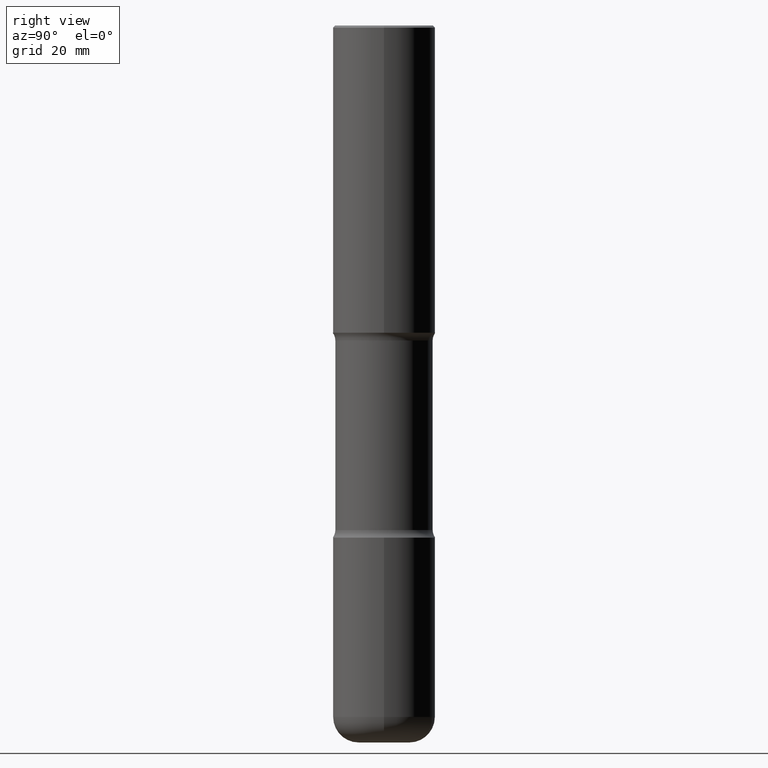
[diagram: clean part render]
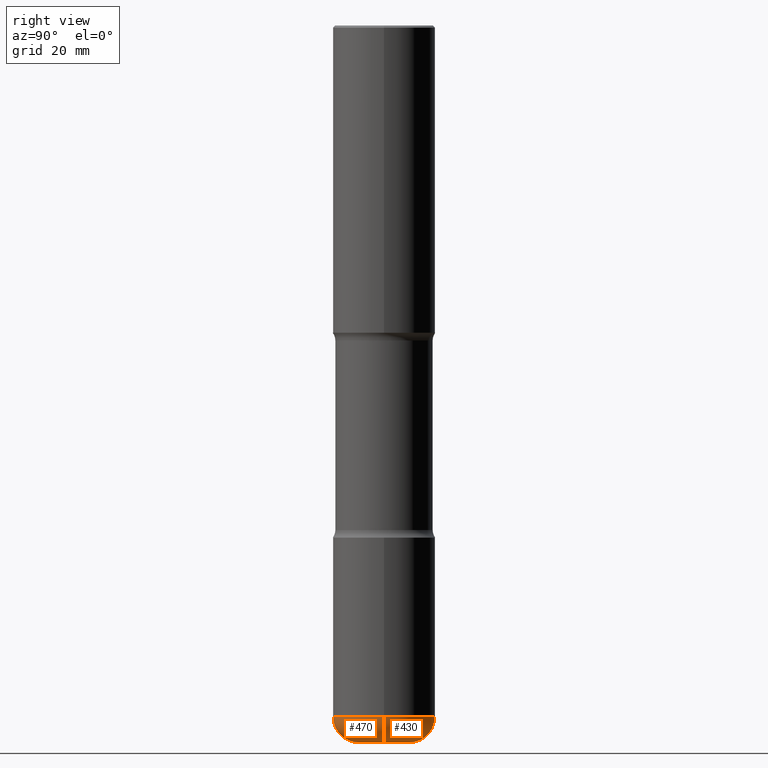
[diagram: same view with one multi-face feature highlighted, each face labeled with its STEP entity id]
A machine part, right view. The highlighted faces form ONE feature: a constant-radius fillet chain: 2 tangent blend faces with common blend radius 6.35 mm. The faces share edges in the B-rep.
Their STEP definitions:
[1] entity #430 (Torus):
#9 = CARTESIAN_POINT ( 'NONE',  ( 1.711828164329595842E-28, -2.444036937190202499E-14, -7.000000000000001776 ) ) ;
#10 = DIRECTION ( 'NONE',  ( -2.445468806185136597E-29, 3.491481338843145583E-15, 1.000000000000000000 ) ) ;
#21 = EDGE_LOOP ( 'NONE', ( #103, #503, #397, #328 ) ) ;
#31 = TOROIDAL_SURFACE ( 'NONE', #418, 0.2500000000000004996, 0.2500000000000004996 ) ;
#46 = CIRCLE ( 'NONE', #518, 0.2500000000000004996 ) ;
#50 = CARTESIAN_POINT ( 'NONE',  ( -0.2500000000000004996, -2.133939894544624343E-14, -7.000000000000001776 ) ) ;
#70 = VERTEX_POINT ( 'NONE', #320 ) ;
#94 = DIRECTION ( 'NONE',  ( -6.982962677686266711E-15, -1.000000000000000000, 3.491481338843145583E-15 ) ) ;
#95 = AXIS2_PLACEMENT_3D ( 'NONE', #97, #399, #534 ) ;
#97 = CARTESIAN_POINT ( 'NONE',  ( -0.2500000000000004996, -2.179114219779098172E-14, -6.750000000000000888 ) ) ;
#103 = ORIENTED_EDGE ( 'NONE', *, *, #428, .T. ) ;
#123 = CARTESIAN_POINT ( 'NONE',  ( -0.5000000000000007772, -2.001478535839073126E-14, -6.750000000000000888 ) ) ;
#180 = DIRECTION ( 'NONE',  ( 1.000000000000000000, -6.982962677686265133E-15, 4.883557194083112340E-29 ) ) ;
#186 = FACE_OUTER_BOUND ( 'NONE', #21, .T. ) ;
#195 = EDGE_CURVE ( 'NONE', #70, #205, #369, .T. ) ;
#200 = AXIS2_PLACEMENT_3D ( 'NONE', #392, #94, #217 ) ;
#205 = VERTEX_POINT ( 'NONE', #123 ) ;
#214 = CARTESIAN_POINT ( 'NONE',  ( 0.2500000000000004996, -2.618611004132359483E-14, -7.000000000000001776 ) ) ;
#217 = DIRECTION ( 'NONE',  ( 1.000000000000000000, -6.982962677686264344E-15, 0.000000000000000000 ) ) ;
#294 = CIRCLE ( 'NONE', #200, 0.2500000000000004996 ) ;
#299 = CARTESIAN_POINT ( 'NONE',  ( 1.650691444174967427E-28, -2.356749903719123535E-14, -6.750000000000000888 ) ) ;
#318 = VERTEX_POINT ( 'NONE', #50 ) ;
#320 = CARTESIAN_POINT ( 'NONE',  ( 0.5000000000000007772, -2.705898037603436870E-14, -6.750000000000000888 ) ) ;
#328 = ORIENTED_EDGE ( 'NONE', *, *, #423, .F. ) ;
#338 = CIRCLE ( 'NONE', #95, 0.2500000000000004996 ) ;
#351 = VERTEX_POINT ( 'NONE', #214 ) ;
#369 = CIRCLE ( 'NONE', #497, 0.5000000000000005551 ) ;
#370 = CARTESIAN_POINT ( 'NONE',  ( 1.650691444174967427E-28, -2.356749903719123535E-14, -6.750000000000000888 ) ) ;
#384 = DIRECTION ( 'NONE',  ( -2.445468806185136597E-29, 3.491481338843145583E-15, 1.000000000000000000 ) ) ;
#392 = CARTESIAN_POINT ( 'NONE',  ( 0.2500000000000004996, -2.531323970661280518E-14, -6.750000000000000888 ) ) ;
#397 = ORIENTED_EDGE ( 'NONE', *, *, #195, .F. ) ;
#399 = DIRECTION ( 'NONE',  ( 7.105427357601001859E-15, 1.000000000000000000, -3.491481338843145583E-15 ) ) ;
#418 = AXIS2_PLACEMENT_3D ( 'NONE', #299, #384, #180 ) ;
#423 = EDGE_CURVE ( 'NONE', #351, #70, #294, .T. ) ;
#428 = EDGE_CURVE ( 'NONE', #351, #318, #46, .T. ) ;
#430 = ADVANCED_FACE ( 'NONE', ( #186 ), #31, .T. ) ;
#446 = EDGE_CURVE ( 'NONE', #318, #205, #338, .T. ) ;
#497 = AXIS2_PLACEMENT_3D ( 'NONE', #370, #545, #499 ) ;
#499 = DIRECTION ( 'NONE',  ( 1.000000000000000000, -6.982962677686262766E-15, 0.000000000000000000 ) ) ;
#503 = ORIENTED_EDGE ( 'NONE', *, *, #446, .T. ) ;
#517 = DIRECTION ( 'NONE',  ( 1.000000000000000000, -6.982962677686264344E-15, 0.000000000000000000 ) ) ;
#518 = AXIS2_PLACEMENT_3D ( 'NONE', #9, #10, #517 ) ;
#534 = DIRECTION ( 'NONE',  ( -1.000000000000000000, 7.105427357600997126E-15, 0.000000000000000000 ) ) ;
#545 = DIRECTION ( 'NONE',  ( -2.445468806185136597E-29, 3.491481338843145583E-15, 1.000000000000000000 ) ) ;
[2] entity #470 (Torus):
#16 = DIRECTION ( 'NONE',  ( 1.000000000000000000, -6.982962677686265133E-15, 4.883557194083112340E-29 ) ) ;
#39 = CIRCLE ( 'NONE', #387, 0.2500000000000004996 ) ;
#50 = CARTESIAN_POINT ( 'NONE',  ( -0.2500000000000004996, -2.133939894544624343E-14, -7.000000000000001776 ) ) ;
#58 = DIRECTION ( 'NONE',  ( -2.445468806185136597E-29, 3.491481338843145583E-15, 1.000000000000000000 ) ) ;
#70 = VERTEX_POINT ( 'NONE', #320 ) ;
#85 = CARTESIAN_POINT ( 'NONE',  ( 1.711828164329595842E-28, -2.444036937190202499E-14, -7.000000000000001776 ) ) ;
#90 = EDGE_LOOP ( 'NONE', ( #500, #482, #233, #323 ) ) ;
#94 = DIRECTION ( 'NONE',  ( -6.982962677686266711E-15, -1.000000000000000000, 3.491481338843145583E-15 ) ) ;
#95 = AXIS2_PLACEMENT_3D ( 'NONE', #97, #399, #534 ) ;
#97 = CARTESIAN_POINT ( 'NONE',  ( -0.2500000000000004996, -2.179114219779098172E-14, -6.750000000000000888 ) ) ;
#123 = CARTESIAN_POINT ( 'NONE',  ( -0.5000000000000007772, -2.001478535839073126E-14, -6.750000000000000888 ) ) ;
#134 = CIRCLE ( 'NONE', #154, 0.5000000000000005551 ) ;
#148 = CARTESIAN_POINT ( 'NONE',  ( 1.650691444174967427E-28, -2.356749903719123535E-14, -6.750000000000000888 ) ) ;
#154 = AXIS2_PLACEMENT_3D ( 'NONE', #148, #58, #494 ) ;
#188 = CARTESIAN_POINT ( 'NONE',  ( 1.650691444174967427E-28, -2.356749903719123535E-14, -6.750000000000000888 ) ) ;
#200 = AXIS2_PLACEMENT_3D ( 'NONE', #392, #94, #217 ) ;
#205 = VERTEX_POINT ( 'NONE', #123 ) ;
#214 = CARTESIAN_POINT ( 'NONE',  ( 0.2500000000000004996, -2.618611004132359483E-14, -7.000000000000001776 ) ) ;
#217 = DIRECTION ( 'NONE',  ( 1.000000000000000000, -6.982962677686264344E-15, 0.000000000000000000 ) ) ;
#233 = ORIENTED_EDGE ( 'NONE', *, *, #423, .T. ) ;
#252 = EDGE_CURVE ( 'NONE', #318, #351, #39, .T. ) ;
#268 = DIRECTION ( 'NONE',  ( -2.445468806185136597E-29, 3.491481338843145583E-15, 1.000000000000000000 ) ) ;
#294 = CIRCLE ( 'NONE', #200, 0.2500000000000004996 ) ;
#318 = VERTEX_POINT ( 'NONE', #50 ) ;
#320 = CARTESIAN_POINT ( 'NONE',  ( 0.5000000000000007772, -2.705898037603436870E-14, -6.750000000000000888 ) ) ;
#323 = ORIENTED_EDGE ( 'NONE', *, *, #507, .F. ) ;
#327 = TOROIDAL_SURFACE ( 'NONE', #388, 0.2500000000000004996, 0.2500000000000004996 ) ;
#338 = CIRCLE ( 'NONE', #95, 0.2500000000000004996 ) ;
#351 = VERTEX_POINT ( 'NONE', #214 ) ;
#377 = DIRECTION ( 'NONE',  ( -2.445468806185136597E-29, 3.491481338843145583E-15, 1.000000000000000000 ) ) ;
#387 = AXIS2_PLACEMENT_3D ( 'NONE', #85, #377, #463 ) ;
#388 = AXIS2_PLACEMENT_3D ( 'NONE', #188, #268, #16 ) ;
#392 = CARTESIAN_POINT ( 'NONE',  ( 0.2500000000000004996, -2.531323970661280518E-14, -6.750000000000000888 ) ) ;
#399 = DIRECTION ( 'NONE',  ( 7.105427357601001859E-15, 1.000000000000000000, -3.491481338843145583E-15 ) ) ;
#423 = EDGE_CURVE ( 'NONE', #351, #70, #294, .T. ) ;
#446 = EDGE_CURVE ( 'NONE', #318, #205, #338, .T. ) ;
#452 = FACE_OUTER_BOUND ( 'NONE', #90, .T. ) ;
#463 = DIRECTION ( 'NONE',  ( 1.000000000000000000, -6.982962677686264344E-15, 0.000000000000000000 ) ) ;
#470 = ADVANCED_FACE ( 'NONE', ( #452 ), #327, .T. ) ;
#482 = ORIENTED_EDGE ( 'NONE', *, *, #252, .T. ) ;
#494 = DIRECTION ( 'NONE',  ( 1.000000000000000000, -6.982962677686262766E-15, 0.000000000000000000 ) ) ;
#500 = ORIENTED_EDGE ( 'NONE', *, *, #446, .F. ) ;
#507 = EDGE_CURVE ( 'NONE', #205, #70, #134, .T. ) ;
#534 = DIRECTION ( 'NONE',  ( -1.000000000000000000, 7.105427357600997126E-15, 0.000000000000000000 ) ) ;